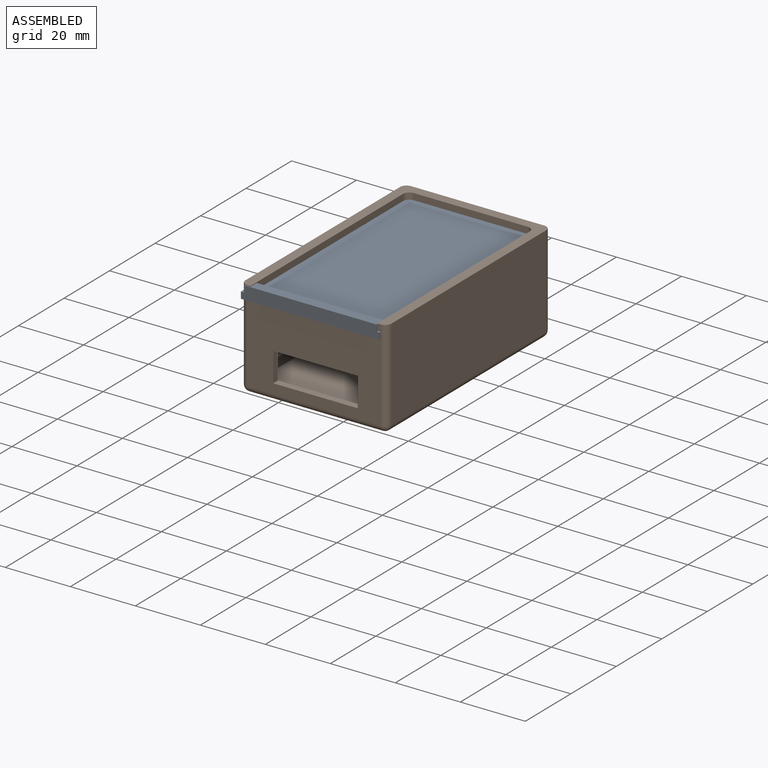
[diagram: assembled view]
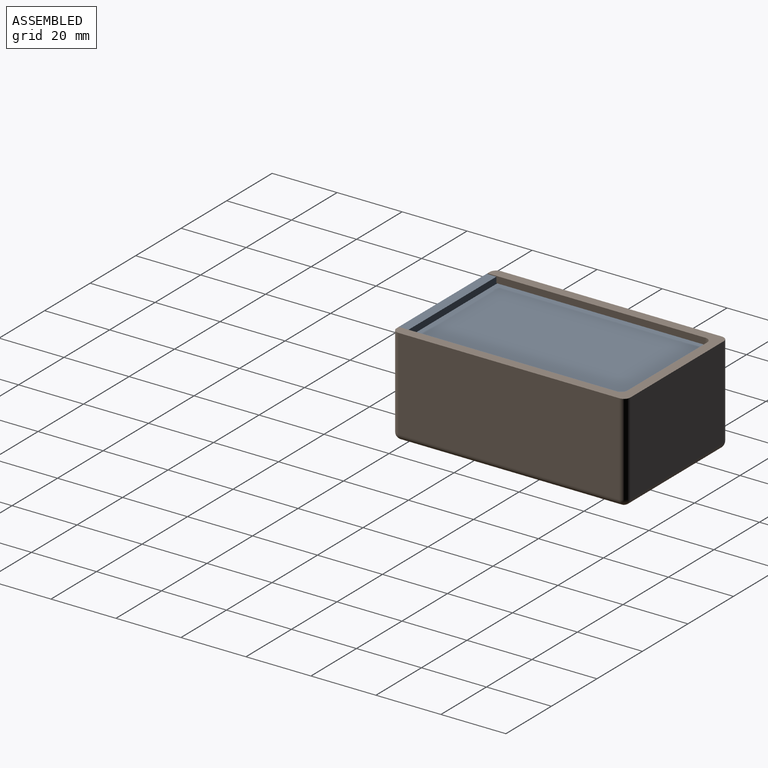
[diagram: assembled view, second angle]
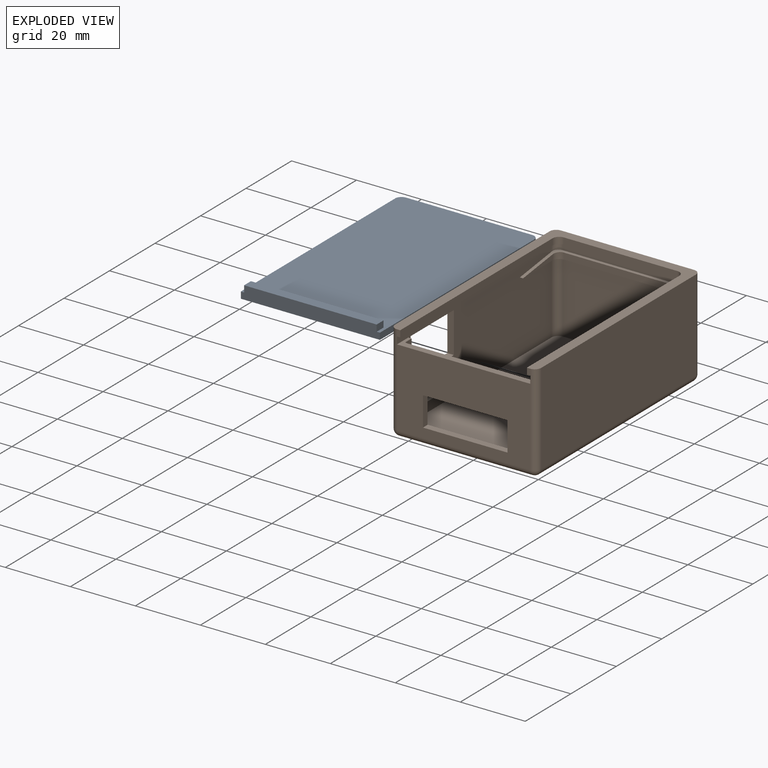
[diagram: exploded view]
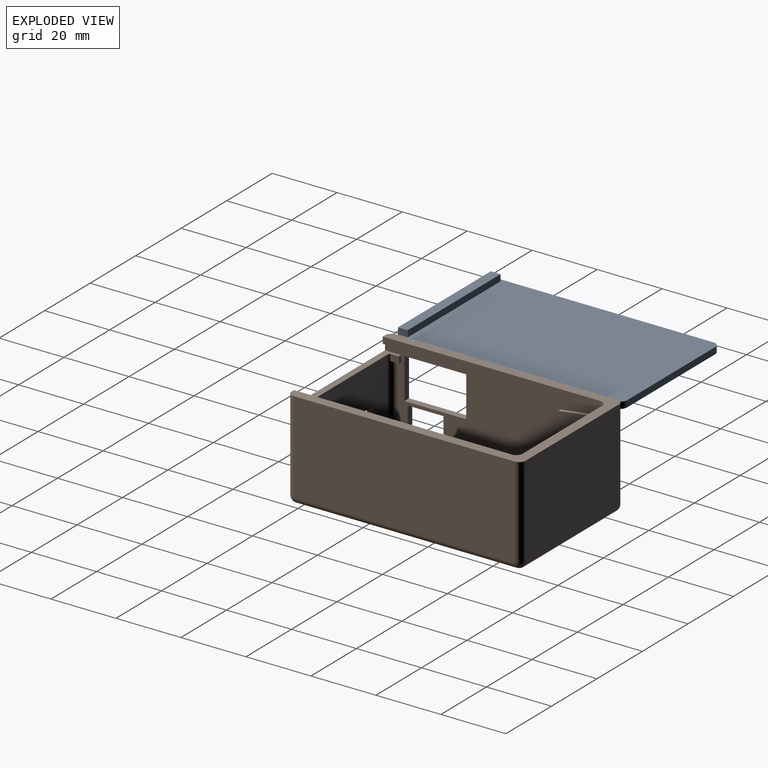
[diagram: exploded view, second angle]
ASSEMBLY  parts=2 mates=2
PART A: 12 faces, bbox 42.8x69.8x4 mm
  f0: plane 69.8x42.8mm, normal (0,0,1), area 2863.3mm2, adj f1,f2,f3,f4,f6,f7,f8,f9
  f1: plane 67.8x2mm, normal (-1,0,0), area 135.6mm2, adj f0,f2,f5,f7
  f2: plane 42.8x4mm, normal (0,-1,0), area 167.2mm2, adj f0,f1,f3,f5,f8,f9,f11
  f3: plane 67.8x2mm, normal (1,0,0), area 135.6mm2, adj f0,f2,f5,f6
  f4: plane 38.8x2mm, normal (0,1,0), area 77.6mm2, adj f0,f5,f6,f7
  f5: plane 69.8x42.8mm, normal (0,0,-1), area 2985.7mm2, adj f1,f2,f3,f4,f6,f7
  f6: cylinder r=2mm len=2mm, axis (0,0,1), area 6.3mm2, adj f0,f3,f4,f5
  f7: cylinder r=2mm len=2mm, axis (0,0,-1), area 6.3mm2, adj f0,f1,f4,f5
  f8: plane 3x2mm, normal (-1,0,0), area 6mm2, adj f0,f2,f10,f11
  f9: plane 3x2mm, normal (1,0,0), area 6mm2, adj f0,f2,f10,f11
  f10: plane 40.8x2mm, normal (0,1,0), area 81.6mm2, adj f0,f8,f9,f11
  f11: plane 40.8x3mm, normal (0,0,1), area 122.4mm2, adj f2,f8,f9,f10
PART B: 189 faces, bbox 45x72x30.2 mm
  f0: plane 41x24mm, normal (0,-1,0), area 750mm2, adj f10,f37,f43,f46,f185,f186,f187,f188
  f1: plane 37x24mm, normal (0,1,0), area 654mm2, adj f10,f18,f32,f33,f185,f186,f187,f188
  f2: plane 68x26.2mm, normal (1,0,0), area 1350.5mm2, adj f5,f6,f10,f13,f14,f17,f18,f27
  f3: plane 68x28.2mm, normal (-1,0,0), area 1597.6mm2, adj f26,f40,f44,f46,f177,f178,f179,f180
  f4: plane 35x2mm, normal (0,-1,0), area 70mm2, adj f10,f14,f31,f176
  f5: cylinder r=2mm len=2.33mm, axis (0,0,-1), area 7mm2, adj f2,f10,f21,f27,f174
  f6: cylinder r=2mm len=22mm, axis (0,0,-1), area 69.1mm2, adj f2,f14,f18,f19
  f7: plane 68x41mm, normal (0,0,-1), area 2525.3mm2, adj f38,f39,f43,f44,f47,f48,f49,f50
  f8: plane 2x1mm, normal (0,-1,0), area 2mm2, adj f23,f26,f27,f46
  f9: plane 2x1mm, normal (0,-1,0), area 2mm2, adj f25,f26,f27,f37
  f10: plane 70x41mm, normal (0,0,1), area 192.4mm2, adj f0,f1,f2,f4,f5,f15,f16,f17
  f11: plane 68x28.2mm, normal (1,0,0), area 1917.6mm2, adj f26,f35,f37,f38
  f12: plane 41x28.2mm, normal (0,1,0), area 1156.2mm2, adj f26,f35,f39,f40
  f13: plane 2.73x1mm, normal (0,0,-1), area 2.2mm2, adj f2,f16,f17,f33
  f14: plane 67.73x41mm, normal (0,0,-1), area 122.2mm2, adj f2,f4,f6,f15,f19,f20,f31,f32
  f15: plane 64.73x2mm, normal (-1,0,0), area 129.5mm2, adj f10,f14,f31,f32
  f16: plane 2.73x2mm, normal (1,0,0), area 5.5mm2, adj f10,f13,f17,f33
  f17: plane 2x1mm, normal (0,1,0), area 2mm2, adj f2,f10,f13,f16
  f18: plane 68x41mm, normal (0,0,1), area 2784.6mm2, adj f1,f2,f6,f19,f20,f32,f33,f34
  f19: plane 37x22mm, normal (0,-1,0), area 814mm2, adj f6,f14,f18,f34
  f20: plane 64x22mm, normal (-1,0,0), area 1408mm2, adj f14,f18,f32,f34
  f21: plane 37x2.2mm, normal (0,-1,0), area 81.4mm2, adj f5,f10,f27,f30
  f22: plane 68x2.2mm, normal (-1,0,0), area 149.6mm2, adj f10,f27,f30,f37
  f23: plane 67x2mm, normal (1,0,0), area 134mm2, adj f8,f26,f27,f28
  f24: plane 35x2mm, normal (0,-1,0), area 70mm2, adj f26,f27,f28,f29
  f25: plane 67x2mm, normal (-1,0,0), area 134mm2, adj f9,f26,f27,f29
  f26: plane 72x45mm, normal (0,0,1), area 547.3mm2, adj f3,f8,f9,f11,f12,f23,f24,f25
  f27: plane 70x41mm, normal (0,0,-1), area 179mm2, adj f2,f5,f8,f9,f21,f22,f23,f24
  f28: cylinder r=2mm len=2mm, axis (0,0,1), area 6.3mm2, adj f23,f24,f26,f27
  f29: cylinder r=2mm len=2mm, axis (0,0,1), area 6.3mm2, adj f24,f25,f26,f27
  f30: cylinder r=2mm len=2.2mm, axis (0,0,1), area 6.9mm2, adj f10,f21,f22,f27
  f31: cylinder r=2mm len=2mm, axis (0,0,1), area 6.3mm2, adj f4,f10,f14,f15
  f32: cylinder r=2mm len=24mm, axis (0,0,-1), area 71.2mm2, adj f1,f10,f14,f15,f18,f20
  f33: cylinder r=2mm len=24mm, axis (0,0,1), area 71.2mm2, adj f1,f2,f10,f13,f16,f18
  f34: cylinder r=2mm len=22mm, axis (0,0,1), area 69.1mm2, adj f14,f18,f19,f20
  f35: cylinder r=2mm len=28.2mm, axis (0,0,1), area 88.6mm2, adj f11,f12,f26,f36
  f36: sphere r=2mm, area 6.3mm2, adj f35,f38,f39
  f37: cylinder r=2mm len=28.2mm, axis (0,0,-1), area 88.6mm2, adj f0,f9,f11,f22,f26,f41
  f38: cylinder r=2mm len=68mm, axis (0,1,0), area 213.6mm2, adj f7,f11,f36,f41
  f39: cylinder r=2mm len=41mm, axis (-1,0,0), area 128.8mm2, adj f7,f12,f36,f42
  f40: cylinder r=2mm len=28.2mm, axis (0,0,-1), area 88.6mm2, adj f3,f12,f26,f42
  f41: sphere r=2mm, area 6.3mm2, adj f37,f38,f43
  f42: sphere r=2mm, area 6.3mm2, adj f39,f40,f44
  f43: cylinder r=2mm len=41mm, axis (1,0,0), area 128.8mm2, adj f0,f7,f41,f45
  f44: cylinder r=2mm len=68mm, axis (0,-1,0), area 213.6mm2, adj f3,f7,f42,f45
  f45: sphere r=2mm, area 6.3mm2, adj f43,f44,f46
  f46: cylinder r=2mm len=28.2mm, axis (0,0,1), area 88.6mm2, adj f0,f2,f3,f8,f26,f45
  f47: plane 1x1mm, normal (0,1,0), area 1mm2, adj f7,f48,f50,f51
  f48: plane 64x1mm, normal (1,0,0), area 64mm2, adj f7,f47,f49,f51
  f49: plane 1x1mm, normal (0,-1,0), area 1mm2, adj f7,f48,f50,f51
  f50: plane 64x1mm, normal (-1,0,0), area 64mm2, adj f7,f47,f49,f51
  f51: plane 64x1mm, normal (0,0,-1), area 64mm2, adj f47,f48,f49,f50
  f52: plane 4x1mm, normal (-1,0,0), area 4mm2, adj f7,f53,f58,f59
  f53: cylinder r=2mm len=2mm, axis (0,0,-1), area 3.1mm2, adj f7,f52,f54,f59
  f54: plane 2x1mm, normal (0,1,0), area 2mm2, adj f7,f53,f55,f59
  f55: cylinder r=2mm len=2mm, axis (0,0,-1), area 3.1mm2, adj f7,f54,f56,f59
  f56: plane 2x1mm, normal (1,0,0), area 2mm2, adj f7,f55,f57,f59
  f57: cylinder r=2mm len=2mm, axis (0,0,-1), area 3.1mm2, adj f7,f56,f58,f59
  f58: plane 4x1mm, normal (0,-1,0), area 4mm2, adj f7,f52,f57,f59
  f59: plane 6x6mm, normal (0,0,-1), area 33.4mm2, adj f52,f53,f54,f55,f56,f57,f58
  f60: plane 3x1mm, normal (1,0,0), area 3mm2, adj f7,f61,f71,f72
  f61: plane 4x1mm, normal (0,-1,0), area 4mm2, adj f7,f60,f62,f72
  f62: plane 3x1mm, normal (-1,0,0), area 3mm2, adj f7,f61,f71,f72
  f63: plane 1x0.8mm, normal (0,1,0), area 0.8mm2, adj f64,f69,f72,f74
  f64: plane 1.4x1mm, normal (-1,0,0), area 1.4mm2, adj f63,f65,f72,f74
  f65: plane 1x0.8mm, normal (0,-1,0), area 0.8mm2, adj f64,f69,f72,f74
  f66: plane 1x0.8mm, normal (0,1,0), area 0.8mm2, adj f67,f70,f72,f73
  f67: plane 1.4x1mm, normal (-1,0,0), area 1.4mm2, adj f66,f68,f72,f73
  f68: plane 1x0.8mm, normal (0,-1,0), area 0.8mm2, adj f67,f70,f72,f73
  f69: plane 1.4x1mm, normal (1,0,0), area 1.4mm2, adj f63,f65,f72,f74
  f70: plane 1.4x1mm, normal (1,0,0), area 1.4mm2, adj f66,f68,f72,f73
  f71: plane 4x1mm, normal (0,1,0), area 4mm2, adj f7,f60,f62,f72
  f72: plane 4x3mm, normal (0,0,-1), area 9.8mm2, adj f60,f61,f62,f63,f64,f65,f66,f67
  f73: plane 1.4x0.8mm, normal (0,0,-1), area 1.1mm2, adj f66,f67,f68,f70
  f74: plane 1.4x0.8mm, normal (0,0,-1), area 1.1mm2, adj f63,f64,f65,f69
  f75: plane 1x0.8mm, normal (0,1,0), area 0.8mm2, adj f76,f86,f87,f173
  f76: plane 1.4x1mm, normal (-1,0,0), area 1.4mm2, adj f75,f77,f87,f173
  f77: plane 1x0.8mm, normal (0,-1,0), area 0.8mm2, adj f76,f86,f87,f173
  f78: plane 4x1mm, normal (0,-1,0), area 4mm2, adj f7,f79,f85,f87
  f79: plane 1x0.8mm, normal (-1,0,0), area 0.8mm2, adj f7,f78,f80,f87
  f80: plane 1.6x1mm, normal (0,1,0), area 1.6mm2, adj f7,f79,f81,f87
  f81: plane 1.4x1mm, normal (-1,0,0), area 1.4mm2, adj f7,f80,f82,f87
  f82: plane 1.6x1mm, normal (0,-1,0), area 1.6mm2, adj f7,f81,f83,f87
  f83: plane 1x0.8mm, normal (-1,0,0), area 0.8mm2, adj f7,f82,f84,f87
  f84: plane 4x1mm, normal (0,1,0), area 4mm2, adj f7,f83,f85,f87
  f85: plane 3x1mm, normal (1,0,0), area 3mm2, adj f7,f78,f84,f87
  f86: plane 1.4x1mm, normal (1,0,0), area 1.4mm2, adj f75,f77,f87,f173
  f87: plane 4x3mm, normal (0,0,-1), area 8.6mm2, adj f75,f76,f77,f78,f79,f80,f81,f82
  f88: plane 8x1mm, normal (1,0,0), area 8mm2, adj f7,f89,f94,f95
  f89: plane 8x1mm, normal (0,1,0), area 8mm2, adj f7,f88,f90,f95
  f90: plane 2x1mm, normal (1,0,0), area 2mm2, adj f7,f89,f91,f95
  f91: plane 8x1mm, normal (0,-1,0), area 8mm2, adj f7,f90,f92,f95
  f92: cylinder r=2mm len=2mm, axis (0,0,-1), area 3.1mm2, adj f7,f91,f93,f95
  f93: plane 8x1mm, normal (-1,0,0), area 8mm2, adj f7,f92,f94,f95
  f94: plane 2x1mm, normal (0,1,0), area 2mm2, adj f7,f88,f93,f95
  f95: plane 10x10mm, normal (0,0,-1), area 35.1mm2, adj f88,f89,f90,f91,f92,f93,f94
  f96: plane 1x1mm, normal (0,1,0), area 1mm2, adj f7,f97,f103,f104
  f97: plane 3x1mm, normal (1,0,0), area 3mm2, adj f7,f96,f98,f104
  f98: cylinder r=2mm len=2mm, axis (0,0,-1), area 3.1mm2, adj f7,f97,f99,f104
  f99: plane 7x1mm, normal (0,1,0), area 7mm2, adj f7,f98,f100,f104
  f100: plane 1x1mm, normal (1,0,0), area 1mm2, adj f7,f99,f101,f104
  f101: plane 8x1mm, normal (0,-1,0), area 8mm2, adj f7,f100,f102,f104
  f102: cylinder r=2mm len=2mm, axis (0,0,-1), area 3.1mm2, adj f7,f101,f103,f104
  f103: plane 4x1mm, normal (-1,0,0), area 4mm2, adj f7,f96,f102,f104
  f104: plane 10x6mm, normal (0,0,-1), area 15mm2, adj f96,f97,f98,f99,f100,f101,f102,f103
  f105: cylinder r=2mm len=2mm, axis (0,0,-1), area 3.1mm2, adj f7,f106,f116,f117
  f106: plane 1x1mm, normal (1,0,0), area 1mm2, adj f7,f105,f107,f117
  f107: cylinder r=2mm len=2mm, axis (0,0,-1), area 3.1mm2, adj f7,f106,f108,f117
  f108: plane 7x1mm, normal (0,1,0), area 7mm2, adj f7,f107,f109,f117
  f109: plane 1x1mm, normal (1,0,0), area 1mm2, adj f7,f108,f110,f117
  f110: plane 8x1mm, normal (0,-1,0), area 8mm2, adj f7,f109,f111,f117
  f111: cylinder r=2mm len=2mm, axis (0,0,-1), area 3.1mm2, adj f7,f110,f112,f117
  f112: plane 3x1mm, normal (-1,0,0), area 3mm2, adj f7,f111,f113,f117
  f113: cylinder r=2mm len=2mm, axis (0,0,-1), area 3.1mm2, adj f7,f112,f114,f117
  f114: plane 8x1mm, normal (0,1,0), area 8mm2, adj f7,f113,f115,f117
  f115: plane 1x1mm, normal (1,0,0), area 1mm2, adj f7,f114,f116,f117
  f116: plane 7x1mm, normal (0,-1,0), area 7mm2, adj f7,f105,f115,f117
  f117: plane 10x7mm, normal (0,0,-1), area 25mm2, adj f105,f106,f107,f108,f109,f110,f111,f112
  f118: plane 4x1mm, normal (-1,0,0), area 4mm2, adj f7,f119,f129,f130
  f119: plane 1x1mm, normal (0,1,0), area 1mm2, adj f7,f118,f120,f130
  f120: plane 3x1mm, normal (1,0,0), area 3mm2, adj f7,f119,f121,f130
  f121: cylinder r=2mm len=2mm, axis (0,0,-1), area 3.1mm2, adj f7,f120,f122,f130
  f122: plane 4x1mm, normal (0,1,0), area 4mm2, adj f7,f121,f123,f130
  f123: cylinder r=2mm len=2mm, axis (0,0,-1), area 3.1mm2, adj f7,f122,f124,f130
  f124: plane 3x1mm, normal (-1,0,0), area 3mm2, adj f7,f123,f125,f130
  f125: plane 1x1mm, normal (0,1,0), area 1mm2, adj f7,f124,f126,f130
  f126: plane 4x1mm, normal (1,0,0), area 4mm2, adj f7,f125,f127,f130
  f127: cylinder r=2mm len=2mm, axis (0,0,-1), area 3.1mm2, adj f7,f126,f128,f130
  f128: plane 6x1mm, normal (0,-1,0), area 6mm2, adj f7,f127,f129,f130
  f129: cylinder r=2mm len=2mm, axis (0,0,-1), area 3.1mm2, adj f7,f118,f128,f130
  f130: plane 10x6mm, normal (0,0,-1), area 20mm2, adj f118,f119,f120,f121,f122,f123,f124,f125
  f131: plane 1x1mm, normal (1,0,0), area 1mm2, adj f7,f132,f134,f135
  f132: plane 10x1mm, normal (0,-1,0), area 10mm2, adj f7,f131,f133,f135
  f133: plane 1x1mm, normal (-1,0,0), area 1mm2, adj f7,f132,f134,f135
  f134: plane 10x1mm, normal (0,1,0), area 10mm2, adj f7,f131,f133,f135
  f135: plane 10x1mm, normal (0,0,-1), area 10mm2, adj f131,f132,f133,f134
  f136: cylinder r=2mm len=2mm, axis (0,0,-1), area 3.1mm2, adj f7,f137,f151,f152
  f137: plane 1.5x1mm, normal (0,1,0), area 1.5mm2, adj f7,f136,f138,f152
  f138: plane 5x1mm, normal (-1,0,0), area 5mm2, adj f7,f137,f139,f152
  f139: plane 1x1mm, normal (0,1,0), area 1mm2, adj f7,f138,f140,f152
  f140: plane 5x1mm, normal (1,0,0), area 5mm2, adj f7,f139,f141,f152
  f141: plane 1.5x1mm, normal (0,1,0), area 1.5mm2, adj f7,f140,f142,f152
  f142: cylinder r=2mm len=2mm, axis (0,0,-1), area 3.1mm2, adj f7,f141,f143,f152
  f143: plane 3x1mm, normal (-1,0,0), area 3mm2, adj f7,f142,f144,f152
  f144: plane 1x1mm, normal (0,1,0), area 1mm2, adj f7,f143,f145,f152
  f145: plane 4x1mm, normal (1,0,0), area 4mm2, adj f7,f144,f146,f152
  f146: cylinder r=2mm len=2mm, axis (0,0,-1), area 3.1mm2, adj f7,f145,f147,f152
  f147: plane 6x1mm, normal (0,-1,0), area 6mm2, adj f7,f146,f148,f152
  f148: cylinder r=2mm len=2mm, axis (0,0,-1), area 3.1mm2, adj f7,f147,f149,f152
  f149: plane 4x1mm, normal (-1,0,0), area 4mm2, adj f7,f148,f150,f152
  f150: plane 1x1mm, normal (0,1,0), area 1mm2, adj f7,f149,f151,f152
  f151: plane 3x1mm, normal (1,0,0), area 3mm2, adj f7,f136,f150,f152
  f152: plane 10x6mm, normal (0,0,-1), area 25mm2, adj f136,f137,f138,f139,f140,f141,f142,f143
  f153: plane 1x0.8mm, normal (1,0,0), area 0.8mm2, adj f7,f154,f158,f159
  f154: plane 4x1mm, normal (0,-1,0), area 4mm2, adj f7,f153,f155,f159
  f155: plane 3x1mm, normal (-1,0,0), area 3mm2, adj f7,f154,f156,f159
  f156: plane 1x0.75mm, normal (0,1,0), area 0.8mm2, adj f7,f155,f157,f159
  f157: plane 2.2x1mm, normal (1,0,0), area 2.2mm2, adj f7,f156,f158,f159
  f158: plane 3.25x1mm, normal (0,1,0), area 3.2mm2, adj f7,f153,f157,f159
  f159: plane 4x3mm, normal (0,0,-1), area 4.8mm2, adj f153,f154,f155,f156,f157,f158
  f160: plane 3x1mm, normal (1,0,0), area 3mm2, adj f7,f161,f171,f172
  f161: plane 2.4x1mm, normal (0,-1,0), area 2.4mm2, adj f7,f160,f162,f172
  f162: plane 2.2x1mm, normal (-1,0,0), area 2.2mm2, adj f7,f161,f163,f172
  f163: plane 1x0.8mm, normal (0,-1,0), area 0.8mm2, adj f7,f162,f164,f172
  f164: plane 2.2x1mm, normal (1,0,0), area 2.2mm2, adj f7,f163,f165,f172
  f165: plane 1x0.8mm, normal (0,-1,0), area 0.8mm2, adj f7,f164,f166,f172
  f166: plane 3x1mm, normal (-1,0,0), area 3mm2, adj f7,f165,f167,f172
  f167: plane 2.4x1mm, normal (0,1,0), area 2.4mm2, adj f7,f166,f168,f172
  f168: plane 2.2x1mm, normal (1,0,0), area 2.2mm2, adj f7,f167,f169,f172
  f169: plane 1x0.8mm, normal (0,1,0), area 0.8mm2, adj f7,f168,f170,f172
  f170: plane 2.2x1mm, normal (-1,0,0), area 2.2mm2, adj f7,f169,f171,f172
  f171: plane 1x0.8mm, normal (0,1,0), area 0.8mm2, adj f7,f160,f170,f172
  f172: plane 4x3mm, normal (0,0,-1), area 8.5mm2, adj f160,f161,f162,f163,f164,f165,f166,f167
  f173: plane 1.4x0.8mm, normal (0,0,-1), area 1.1mm2, adj f75,f76,f77,f86
  f174: plane 15x3mm, normal (0,-0.13,0.99), area 15.9mm2, adj f2,f5,f10,f14,f175,f176
  f175: plane 13x1.73mm, normal (1,0,0), area 11.3mm2, adj f14,f174,f176
  f176: cylinder r=2mm len=2mm, axis (0,0,1), area 6mm2, adj f4,f14,f174,f175
  f177: plane 11x2mm, normal (0,0,-1), area 22mm2, adj f2,f3,f178,f180
  f178: plane 7.5x2mm, normal (0,-1,0), area 15mm2, adj f2,f3,f177,f179
  f179: plane 11x2mm, normal (0,0,1), area 22mm2, adj f2,f3,f178,f180
  f180: plane 7.5x2mm, normal (0,1,0), area 15mm2, adj f2,f3,f177,f179
  f181: plane 19x2mm, normal (0,0,-1), area 38mm2, adj f2,f3,f182,f184
  f182: plane 12.5x2mm, normal (0,-1,0), area 25mm2, adj f2,f3,f181,f183
  f183: plane 19x2mm, normal (0,0,1), area 38mm2, adj f2,f3,f182,f184
  f184: plane 12.5x2mm, normal (0,1,0), area 25mm2, adj f2,f3,f181,f183
  f185: plane 26x2mm, normal (0,0,-1), area 52mm2, adj f0,f1,f186,f188
  f186: plane 9x2mm, normal (1,0,0), area 18mm2, adj f0,f1,f185,f187
  f187: plane 26x2mm, normal (0,0,1), area 52mm2, adj f0,f1,f186,f188
  f188: plane 9x2mm, normal (-1,0,0), area 18mm2, adj f0,f1,f185,f187
PLACE A t=(-9.65,-2.74,46.11)mm
PLACE B t=(-9.85,-2.47,20.11)mm fixed
MATE planar B.f20 <-> A.f3  axis (-1,0,0) through (33.15,33.53,33.11)mm
MATE planar A.f5 <-> B.f10  axis (0,0,-1) through (11.75,32.14,46.11)mm
